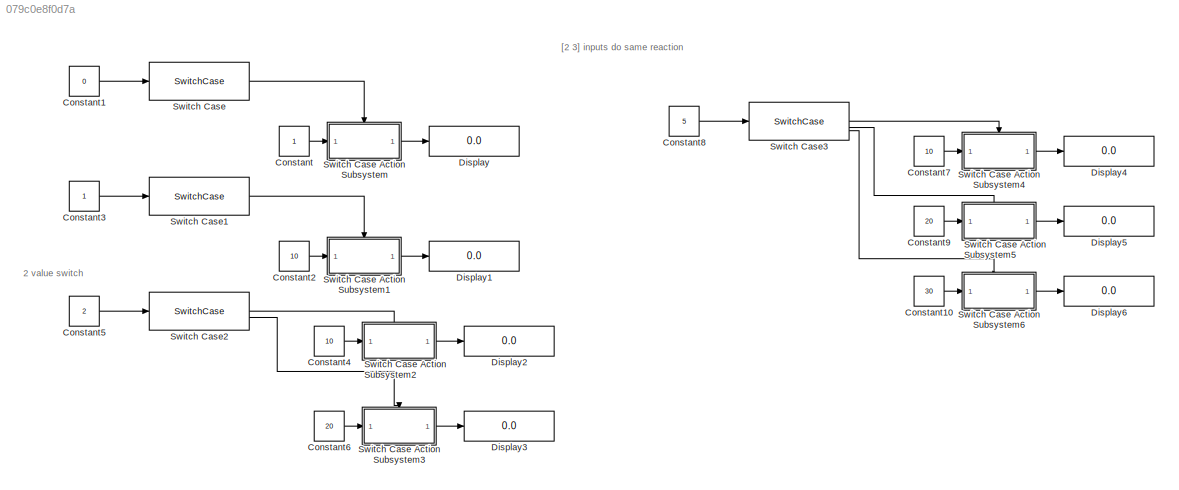
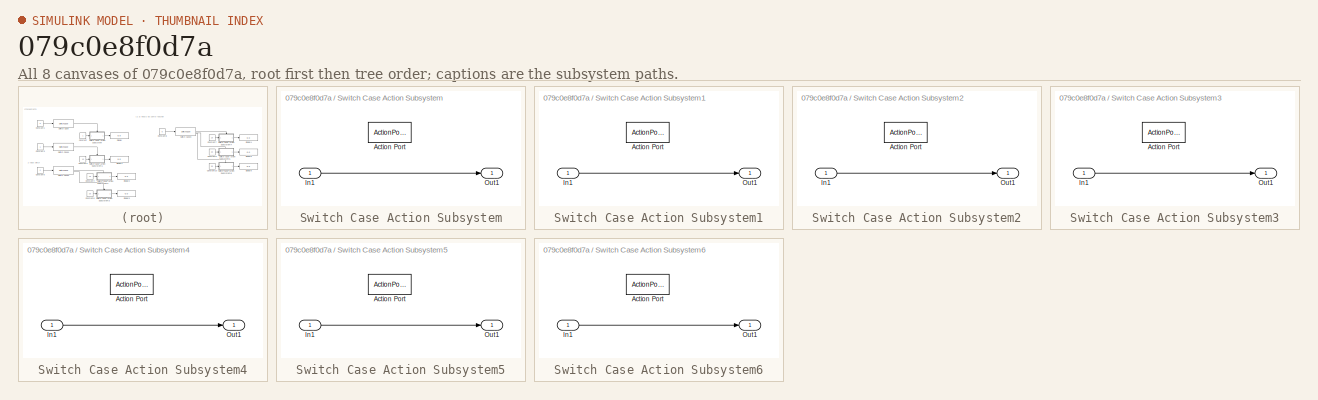
[diagram: thumbnail index - all 8 canvases of the model, root first then tree order]
MODEL slx_079c0e8f0d7a
KIND model
CONFIG AbsTol = auto
CONFIG EnableMultiTasking = off
CONFIG FixedStep = auto
CONFIG MaxStep = auto
CONFIG MinStep = auto
CONFIG RelTol = 1e-3
CONFIG SampleTimeConstraint = Unconstrained
CONFIG SolverName = VariableStepAuto
CONFIG StartTime = 0.0
CONFIG StopTime = 10.0
BLOCK [Constant] Constant
BLOCK [Constant] Constant1
  Value = 0
BLOCK [Constant] Constant10
  Value = 30
BLOCK [Constant] Constant2
  Value = 10
BLOCK [Constant] Constant3
BLOCK [Constant] Constant4
  Value = 10
BLOCK [Constant] Constant5
  Value = 2
BLOCK [Constant] Constant6
  Value = 20
BLOCK [Constant] Constant7
  Value = 10
BLOCK [Constant] Constant8
  Value = 5
BLOCK [Constant] Constant9
  Value = 20
BLOCK [Display] Display
  Decimation = 1
BLOCK [Display] Display1
  Decimation = 1
BLOCK [Display] Display2
  Decimation = 1
BLOCK [Display] Display3
  Decimation = 1
BLOCK [Display] Display4
  Decimation = 1
BLOCK [Display] Display5
  Decimation = 1
BLOCK [Display] Display6
  Decimation = 1
BLOCK [SwitchCase] Switch Case
  ShowDefaultCase = off
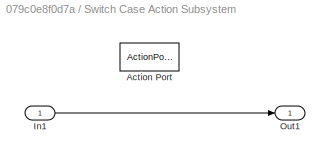
BLOCK [SubSystem] Switch Case Action Subsystem
  TreatAsAtomicUnit = on
BLOCK [ActionPort] Switch Case Action Subsystem/Action Port
  ActionPortLabel = case [ 1 ]:
BLOCK [Inport] Switch Case Action Subsystem/In1
BLOCK [Outport] Switch Case Action Subsystem/Out1
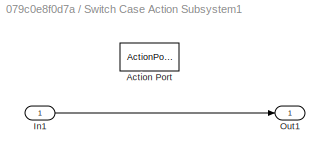
BLOCK [SubSystem] Switch Case Action Subsystem1
  TreatAsAtomicUnit = on
BLOCK [ActionPort] Switch Case Action Subsystem1/Action Port
  ActionPortLabel = case [ 1 ]:
BLOCK [Inport] Switch Case Action Subsystem1/In1
BLOCK [Outport] Switch Case Action Subsystem1/Out1
BLOCK [SubSystem] Switch Case Action Subsystem2
  TreatAsAtomicUnit = on
BLOCK [ActionPort] Switch Case Action Subsystem2/Action Port
  ActionPortLabel = case [ 1 ]:
BLOCK [Inport] Switch Case Action Subsystem2/In1
BLOCK [Outport] Switch Case Action Subsystem2/Out1
BLOCK [SubSystem] Switch Case Action Subsystem3
  TreatAsAtomicUnit = on
BLOCK [ActionPort] Switch Case Action Subsystem3/Action Port
  ActionPortLabel = case [ 2 ]:
BLOCK [Inport] Switch Case Action Subsystem3/In1
BLOCK [Outport] Switch Case Action Subsystem3/Out1
BLOCK [SubSystem] Switch Case Action Subsystem4
  TreatAsAtomicUnit = on
BLOCK [ActionPort] Switch Case Action Subsystem4/Action Port
  ActionPortLabel = case [ 1 ]:
BLOCK [Inport] Switch Case Action Subsystem4/In1
BLOCK [Outport] Switch Case Action Subsystem4/Out1
BLOCK [SubSystem] Switch Case Action Subsystem5
  TreatAsAtomicUnit = on
BLOCK [ActionPort] Switch Case Action Subsystem5/Action Port
  ActionPortLabel = case [ 2 3 ]:
BLOCK [Inport] Switch Case Action Subsystem5/In1
BLOCK [Outport] Switch Case Action Subsystem5/Out1
BLOCK [SubSystem] Switch Case Action Subsystem6
  TreatAsAtomicUnit = on
BLOCK [ActionPort] Switch Case Action Subsystem6/Action Port
  ActionPortLabel = default:
BLOCK [Inport] Switch Case Action Subsystem6/In1
BLOCK [Outport] Switch Case Action Subsystem6/Out1
BLOCK [SwitchCase] Switch Case1
  ShowDefaultCase = off
BLOCK [SwitchCase] Switch Case2
  CaseConditions = {1,2}
  ShowDefaultCase = off
BLOCK [SwitchCase] Switch Case3
  CaseConditions = {1,[2 3]}
ANNOTATION (root): 2 value switch
ANNOTATION (root): [2 3] inputs do same reaction
LINE Constant10:1 -> Switch Case Action Subsystem6:1
LINE Constant1:1 -> Switch Case:1
LINE Constant2:1 -> Switch Case Action Subsystem1:1
LINE Constant3:1 -> Switch Case1:1
LINE Constant4:1 -> Switch Case Action Subsystem2:1
LINE Constant5:1 -> Switch Case2:1
LINE Constant6:1 -> Switch Case Action Subsystem3:1
LINE Constant7:1 -> Switch Case Action Subsystem4:1
LINE Constant8:1 -> Switch Case3:1
LINE Constant9:1 -> Switch Case Action Subsystem5:1
LINE Constant:1 -> Switch Case Action Subsystem:1
LINE Switch Case Action Subsystem/In1:1 -> Switch Case Action Subsystem/Out1:1
LINE Switch Case Action Subsystem1/In1:1 -> Switch Case Action Subsystem1/Out1:1
LINE Switch Case Action Subsystem1:1 -> Display1:1
LINE Switch Case Action Subsystem2/In1:1 -> Switch Case Action Subsystem2/Out1:1
LINE Switch Case Action Subsystem2:1 -> Display2:1
LINE Switch Case Action Subsystem3/In1:1 -> Switch Case Action Subsystem3/Out1:1
LINE Switch Case Action Subsystem3:1 -> Display3:1
LINE Switch Case Action Subsystem4/In1:1 -> Switch Case Action Subsystem4/Out1:1
LINE Switch Case Action Subsystem4:1 -> Display4:1
LINE Switch Case Action Subsystem5/In1:1 -> Switch Case Action Subsystem5/Out1:1
LINE Switch Case Action Subsystem5:1 -> Display5:1
LINE Switch Case Action Subsystem6/In1:1 -> Switch Case Action Subsystem6/Out1:1
LINE Switch Case Action Subsystem6:1 -> Display6:1
LINE Switch Case Action Subsystem:1 -> Display:1
LINE Switch Case1:1 -> Switch Case Action Subsystem1:ifaction
LINE Switch Case2:1 -> Switch Case Action Subsystem2:ifaction
LINE Switch Case2:2 -> Switch Case Action Subsystem3:ifaction
LINE Switch Case3:1 -> Switch Case Action Subsystem4:ifaction
LINE Switch Case3:2 -> Switch Case Action Subsystem5:ifaction
LINE Switch Case3:3 -> Switch Case Action Subsystem6:ifaction
LINE Switch Case:1 -> Switch Case Action Subsystem:ifaction
